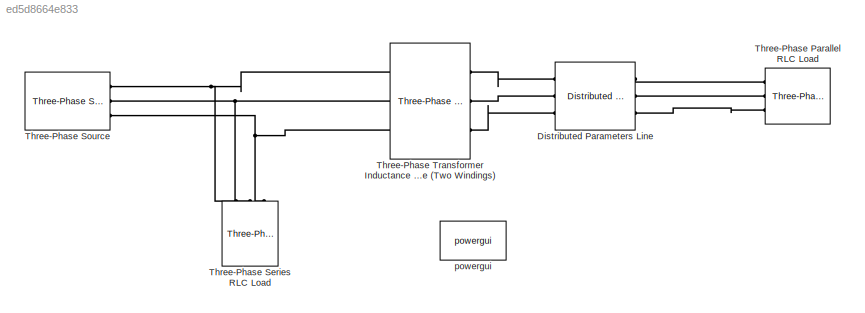
MODEL slx_ed5d8664e833
KIND model
CONFIG AbsTol = auto
CONFIG EnableMultiTasking = off
CONFIG FixedStep = auto
CONFIG MaxStep = auto
CONFIG MinStep = auto
CONFIG RelTol = 1e-3
CONFIG SampleTimeConstraint = Unconstrained
CONFIG Solver = VariableStepAuto
CONFIG SolverName = VariableStepAuto
CONFIG StartTime = 0.0
CONFIG StopTime = 10.0
BLOCK [Reference] Distributed Parameters Line  REF=powerlib/Elements/Distributed Parameters Line
  Ports = [0, 0, 0, 0, 0, 3, 3]
  SourceBlock = powerlib/Elements/Distributed Parameters Line
  SourceType = Distributed Parameters Line
BLOCK [Reference] Three-Phase Parallel RLC Load  REF=powerlib/Elements/Three-Phase
Parallel RLC Load
  AttributesFormatString = \n
  Ports = [0, 0, 0, 0, 0, 3]
  SourceBlock = powerlib/Elements/Three-Phase\nParallel RLC Load
  SourceType = Three-Phase Parallel RLC Load
BLOCK [Reference] Three-Phase Series RLC Load  REF=powerlib/Elements/Three-Phase
Series RLC Load
  AttributesFormatString = \n
  Ports = [0, 0, 0, 0, 0, 3]
  SourceBlock = powerlib/Elements/Three-Phase\nSeries RLC Load
  SourceType = Three-Phase Series RLC Load
BLOCK [Reference] Three-Phase Source  REF=powerlib/Electrical
Sources/Three-Phase Source
  Ports = [0, 0, 0, 0, 0, 0, 3]
  SourceBlock = powerlib/Electrical\nSources/Three-Phase Source
  SourceType = Three-Phase Source
BLOCK [Reference] Three-Phase Transformer Inductance Matrix Type (Two Windings)  REF=powerlib/Elements/Three-Phase Transformer
Inductance Matrix Type
(Two Windings)
  Ports = [0, 0, 0, 0, 0, 3, 3]
  SourceBlock = powerlib/Elements/Three-Phase Transformer\nInductance Matrix Type\n(Two Windings)
  SourceType = Three-Phase Transformer Inductance MatrixType (Two Windings)
BLOCK [Reference] powergui  REF=powerlib/powergui
  Ports = []
  Priority = 1
  SourceBlock = powerlib/powergui
  SourceType = PSB option menu block
PLINE Distributed Parameters Line:LConn1 -- Three-Phase Transformer Inductance Matrix Type (Two Windings):RConn1
PLINE Distributed Parameters Line:LConn2 -- Three-Phase Transformer Inductance Matrix Type (Two Windings):RConn2
PLINE Distributed Parameters Line:LConn3 -- Three-Phase Transformer Inductance Matrix Type (Two Windings):RConn3
PLINE Distributed Parameters Line:RConn1 -- Three-Phase Parallel RLC Load:LConn1
PLINE Distributed Parameters Line:RConn2 -- Three-Phase Parallel RLC Load:LConn2
PLINE Distributed Parameters Line:RConn3 -- Three-Phase Parallel RLC Load:LConn3
PNET net1: Three-Phase Series RLC Load:LConn1 -- Three-Phase Source:RConn1 -- Three-Phase Transformer Inductance Matrix Type (Two Windings):LConn1
PNET net2: Three-Phase Series RLC Load:LConn2 -- Three-Phase Source:RConn2 -- Three-Phase Transformer Inductance Matrix Type (Two Windings):LConn2
PNET net3: Three-Phase Series RLC Load:LConn3 -- Three-Phase Source:RConn3 -- Three-Phase Transformer Inductance Matrix Type (Two Windings):LConn3
note: PNET lines group multi-terminal physical nets as a canonical sorted terminal list (undirected conserving connections); 2-terminal nets keep the pairwise PLINE form
